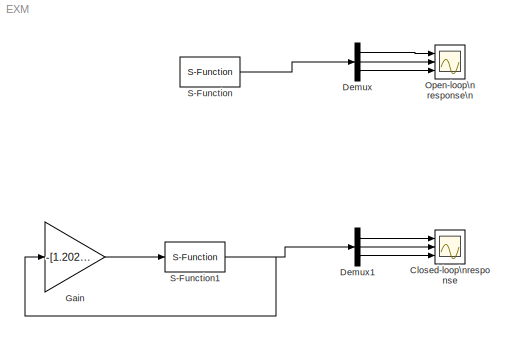
MODEL EXM
KIND model
BLOCK [Scope] Closed-loop\nresponse
  DataFormat = StructureWithTime
  Floating = off
  NumInputPorts = 3
  Ports = [3]
  SID = 9
  SampleTime = 0
  SaveName = ScopeData1
  ShowLegends = off
  YMax = 5~5~5
  YMin = -5~-5~-5
  ZoomMode = xonly
BLOCK [Demux] Demux
  DisplayOption = bar
  Outputs = 3
  Ports = [1, 3]
  SID = 3
BLOCK [Demux] Demux1
  DisplayOption = bar
  Outputs = 3
  Ports = [1, 3]
  SID = 8
BLOCK [Gain] Gain
  Gain = -[1.2022,0.7434,-5.6941;0.7177,0.3999,-3.1285]
  Multiplication = Matrix(K*u)
  OutDataTypeStr = Inherit: Inherit via internal rule
  ParamDataTypeStr = Inherit: Inherit via internal rule
  SID = 7
  SaturateOnIntegerOverflow = off
BLOCK [Scope] Open-loop\n response\n
  DataFormat = StructureWithTime
  Floating = off
  NumInputPorts = 3
  Ports = [3]
  SID = 2
  SampleTime = 0
  ShowLegends = off
  YMax = 5~5~5
  YMin = -5~-5~-5
  ZoomMode = xonly
BLOCK [S-Function] S-Function
  EnableBusSupport = off
  FunctionName = sfunc
  Ports = [1, 1]
  SID = 1
BLOCK [S-Function] S-Function1
  EnableBusSupport = off
  FunctionName = sfunc
  Ports = [1, 1]
  SID = 5
LINE Demux1:1 -> Closed-loop\nresponse:1
LINE Demux1:2 -> Closed-loop\nresponse:2
LINE Demux1:3 -> Closed-loop\nresponse:3
LINE Demux:1 -> Open-loop\n response\n:1
LINE Demux:2 -> Open-loop\n response\n:2
LINE Demux:3 -> Open-loop\n response\n:3
LINE Gain:1 -> S-Function1:1
NET S-Function1:1 -> Demux1:1, Gain:1
LINE S-Function:1 -> Demux:1
note: NET lines group one-source signal fan-out (src -> all destinations, sorted); 1:1 wires keep LINE
